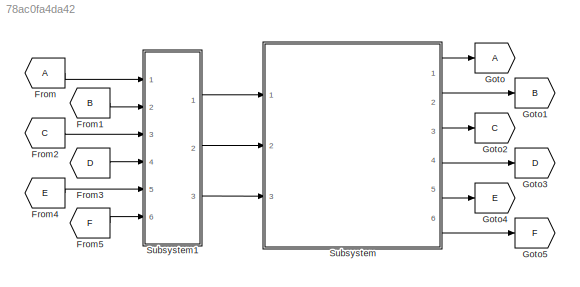
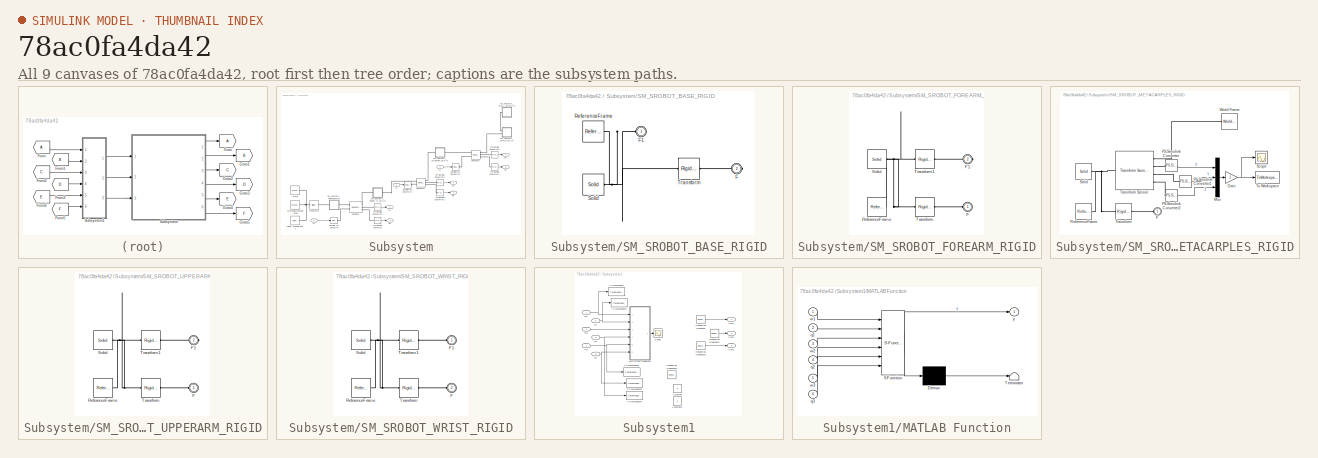
[diagram: thumbnail index - all 9 canvases of the model, root first then tree order]
MODEL slx_78ac0fa4da42
KIND model
CONFIG AbsTol = auto
CONFIG EnableMultiTasking = off
CONFIG FixedStep = 0.001
CONFIG MaxStep = auto
CONFIG MinStep = auto
CONFIG RelTol = 1e-3
CONFIG SampleTimeConstraint = Unconstrained
CONFIG Solver = FixedStepAuto
CONFIG SolverName = FixedStepAuto
CONFIG StartTime = 0.0
CONFIG StopTime = 1
WORKSPACE source: external: MATLAB File  (data not in archive)
BLOCK [From] From
BLOCK [From] From1
  GotoTag = B
BLOCK [From] From2
  GotoTag = C
BLOCK [From] From3
  GotoTag = D
BLOCK [From] From4
  GotoTag = E
BLOCK [From] From5
  GotoTag = F
BLOCK [Goto] Goto
BLOCK [Goto] Goto1
  GotoTag = B
BLOCK [Goto] Goto2
  GotoTag = C
BLOCK [Goto] Goto3
  GotoTag = D
BLOCK [Goto] Goto4
  GotoTag = E
BLOCK [Goto] Goto5
  GotoTag = F
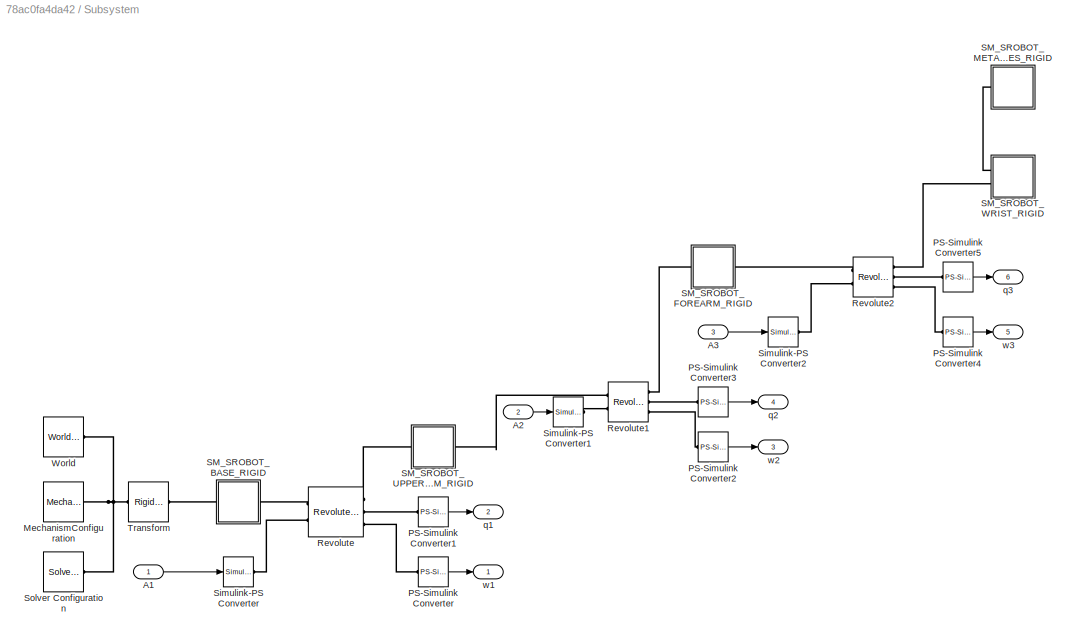
BLOCK [SubSystem] Subsystem
  Ports = [3, 6]
  RequestExecContextInheritance = off
  Variant = off
BLOCK [Inport] Subsystem/A1
  IconDisplay = Port number
BLOCK [Inport] Subsystem/A2
  IconDisplay = Port number
  Port = 2
BLOCK [Inport] Subsystem/A3
  IconDisplay = Port number
  Port = 3
BLOCK [Reference] Subsystem/MechanismConfiguration  REF=sm_lib/Utilities/Mechanism
Configuration
  Ports = [0, 0, 0, 0, 0, 0, 1]
  SourceBlock = sm_lib/Utilities/Mechanism\nConfiguration
  SourceProductBaseCode = MS
  SourceProductName = Simscape Multibody
  SourceType = Mechanism\nConfiguration
BLOCK [Reference] Subsystem/PS-Simulink Converter  REF=nesl_utility/PS-Simulink
Converter
  Ports = [0, 1, 0, 0, 0, 1]
  SourceBlock = nesl_utility/PS-Simulink\nConverter
  SourceProductBaseCode = SS
  SourceProductName = Simscape
  SourceType = PS-Simulink\nConverter
BLOCK [Reference] Subsystem/PS-Simulink Converter1  REF=nesl_utility/PS-Simulink
Converter
  Ports = [0, 1, 0, 0, 0, 1]
  SourceBlock = nesl_utility/PS-Simulink\nConverter
  SourceProductBaseCode = SS
  SourceProductName = Simscape
  SourceType = PS-Simulink\nConverter
BLOCK [Reference] Subsystem/PS-Simulink Converter2  REF=nesl_utility/PS-Simulink
Converter
  Ports = [0, 1, 0, 0, 0, 1]
  SourceBlock = nesl_utility/PS-Simulink\nConverter
  SourceProductBaseCode = SS
  SourceProductName = Simscape
  SourceType = PS-Simulink\nConverter
BLOCK [Reference] Subsystem/PS-Simulink Converter3  REF=nesl_utility/PS-Simulink
Converter
  Ports = [0, 1, 0, 0, 0, 1]
  SourceBlock = nesl_utility/PS-Simulink\nConverter
  SourceProductBaseCode = SS
  SourceProductName = Simscape
  SourceType = PS-Simulink\nConverter
BLOCK [Reference] Subsystem/PS-Simulink Converter4  REF=nesl_utility/PS-Simulink
Converter
  Ports = [0, 1, 0, 0, 0, 1]
  SourceBlock = nesl_utility/PS-Simulink\nConverter
  SourceProductBaseCode = SS
  SourceProductName = Simscape
  SourceType = PS-Simulink\nConverter
BLOCK [Reference] Subsystem/PS-Simulink Converter5  REF=nesl_utility/PS-Simulink
Converter
  Ports = [0, 1, 0, 0, 0, 1]
  SourceBlock = nesl_utility/PS-Simulink\nConverter
  SourceProductBaseCode = SS
  SourceProductName = Simscape
  SourceType = PS-Simulink\nConverter
BLOCK [Reference] Subsystem/Revolute  REF=sm_lib/Joints/Revolute Joint
  Ports = [0, 0, 0, 0, 0, 2, 3]
  SourceBlock = sm_lib/Joints/Revolute Joint
  SourceProductBaseCode = MS
  SourceProductName = Simscape Multibody
  SourceType = Revolute Joint
BLOCK [Reference] Subsystem/Revolute1  REF=sm_lib/Joints/Revolute Joint
  Ports = [0, 0, 0, 0, 0, 2, 3]
  SourceBlock = sm_lib/Joints/Revolute Joint
  SourceProductBaseCode = MS
  SourceProductName = Simscape Multibody
  SourceType = Revolute Joint
BLOCK [Reference] Subsystem/Revolute2  REF=sm_lib/Joints/Revolute Joint
  Ports = [0, 0, 0, 0, 0, 2, 3]
  SourceBlock = sm_lib/Joints/Revolute Joint
  SourceProductBaseCode = MS
  SourceProductName = Simscape Multibody
  SourceType = Revolute Joint
BLOCK [SubSystem] Subsystem/SM_SROBOT_BASE_RIGID
  Ports = [0, 0, 0, 0, 0, 1, 1]
  RequestExecContextInheritance = off
  Variant = off
BLOCK [PMIOPort] Subsystem/SM_SROBOT_BASE_RIGID/F
  Port = 2
  Side = Right
BLOCK [PMIOPort] Subsystem/SM_SROBOT_BASE_RIGID/F1
  Port = 1
  Side = Left
BLOCK [Reference] Subsystem/SM_SROBOT_BASE_RIGID/ReferenceFrame  REF=sm_lib/Frames and
Transforms/Reference
Frame
  Ports = [0, 0, 0, 0, 0, 0, 1]
  SourceBlock = sm_lib/Frames and\nTransforms/Reference\nFrame
  SourceProductBaseCode = MS
  SourceProductName = Simscape Multibody
  SourceType = Reference\nFrame
BLOCK [Reference] Subsystem/SM_SROBOT_BASE_RIGID/Solid  REF=sm_lib/Body Elements/Solid
  Ports = [0, 0, 0, 0, 0, 0, 1]
  SourceBlock = sm_lib/Body Elements/Solid
  SourceProductBaseCode = MS
  SourceProductName = Simscape Multibody
  SourceType = Solid
BLOCK [Reference] Subsystem/SM_SROBOT_BASE_RIGID/Transform  REF=sm_lib/Frames and
Transforms/Rigid
Transform
  Ports = [0, 0, 0, 0, 0, 1, 1]
  SourceBlock = sm_lib/Frames and\nTransforms/Rigid\nTransform
  SourceProductBaseCode = MS
  SourceProductName = Simscape Multibody
  SourceType = Rigid\nTransform
BLOCK [SubSystem] Subsystem/SM_SROBOT_FOREARM_RIGID
  Ports = [0, 0, 0, 0, 0, 1, 1]
  RequestExecContextInheritance = off
  Variant = off
BLOCK [PMIOPort] Subsystem/SM_SROBOT_FOREARM_RIGID/F
  Port = 1
  Side = Left
BLOCK [PMIOPort] Subsystem/SM_SROBOT_FOREARM_RIGID/F1
  Port = 2
  Side = Right
BLOCK [Reference] Subsystem/SM_SROBOT_FOREARM_RIGID/ReferenceFrame  REF=sm_lib/Frames and
Transforms/Reference
Frame
  Ports = [0, 0, 0, 0, 0, 0, 1]
  SourceBlock = sm_lib/Frames and\nTransforms/Reference\nFrame
  SourceProductBaseCode = MS
  SourceProductName = Simscape Multibody
  SourceType = Reference\nFrame
BLOCK [Reference] Subsystem/SM_SROBOT_FOREARM_RIGID/Solid  REF=sm_lib/Body Elements/Solid
  Ports = [0, 0, 0, 0, 0, 0, 1]
  SourceBlock = sm_lib/Body Elements/Solid
  SourceProductBaseCode = MS
  SourceProductName = Simscape Multibody
  SourceType = Solid
BLOCK [Reference] Subsystem/SM_SROBOT_FOREARM_RIGID/Transform  REF=sm_lib/Frames and
Transforms/Rigid
Transform
  Ports = [0, 0, 0, 0, 0, 1, 1]
  SourceBlock = sm_lib/Frames and\nTransforms/Rigid\nTransform
  SourceProductBaseCode = MS
  SourceProductName = Simscape Multibody
  SourceType = Rigid\nTransform
BLOCK [Reference] Subsystem/SM_SROBOT_FOREARM_RIGID/Transform1  REF=sm_lib/Frames and
Transforms/Rigid
Transform
  Ports = [0, 0, 0, 0, 0, 1, 1]
  SourceBlock = sm_lib/Frames and\nTransforms/Rigid\nTransform
  SourceProductBaseCode = MS
  SourceProductName = Simscape Multibody
  SourceType = Rigid\nTransform
BLOCK [SubSystem] Subsystem/SM_SROBOT_METACARPLES_RIGID
  Ports = [0, 0, 0, 0, 0, 1]
  RequestExecContextInheritance = off
  Variant = off
BLOCK [PMIOPort] Subsystem/SM_SROBOT_METACARPLES_RIGID/F
  Port = 1
  Side = Left
BLOCK [Gain] Subsystem/SM_SROBOT_METACARPLES_RIGID/Gain
  Gain = -1
  OutDataTypeStr = Inherit: Inherit via internal rule
  ParamDataTypeStr = Inherit: Inherit via internal rule
  SaturateOnIntegerOverflow = off
BLOCK [Mux] Subsystem/SM_SROBOT_METACARPLES_RIGID/Mux
  DisplayOption = bar
  Inputs = 3
  Ports = [3, 1]
BLOCK [Reference] Subsystem/SM_SROBOT_METACARPLES_RIGID/PS-Simulink Converter  REF=nesl_utility/PS-Simulink
Converter
  Ports = [0, 1, 0, 0, 0, 1]
  SourceBlock = nesl_utility/PS-Simulink\nConverter
  SourceProductBaseCode = SS
  SourceProductName = Simscape
  SourceType = PS-Simulink\nConverter
BLOCK [Reference] Subsystem/SM_SROBOT_METACARPLES_RIGID/PS-Simulink Converter1  REF=nesl_utility/PS-Simulink
Converter
  Ports = [0, 1, 0, 0, 0, 1]
  SourceBlock = nesl_utility/PS-Simulink\nConverter
  SourceProductBaseCode = SS
  SourceProductName = Simscape
  SourceType = PS-Simulink\nConverter
BLOCK [Reference] Subsystem/SM_SROBOT_METACARPLES_RIGID/PS-Simulink Converter2  REF=nesl_utility/PS-Simulink
Converter
  Ports = [0, 1, 0, 0, 0, 1]
  SourceBlock = nesl_utility/PS-Simulink\nConverter
  SourceProductBaseCode = SS
  SourceProductName = Simscape
  SourceType = PS-Simulink\nConverter
BLOCK [Reference] Subsystem/SM_SROBOT_METACARPLES_RIGID/ReferenceFrame  REF=sm_lib/Frames and
Transforms/Reference
Frame
  Ports = [0, 0, 0, 0, 0, 0, 1]
  SourceBlock = sm_lib/Frames and\nTransforms/Reference\nFrame
  SourceProductBaseCode = MS
  SourceProductName = Simscape Multibody
  SourceType = Reference\nFrame
BLOCK [Scope] Subsystem/SM_SROBOT_METACARPLES_RIGID/Scope
  NumInputPorts = 1
  Ports = [1]
  ScopeSpecificationString = Simulink.scopes.TimeScopeBlockCfg('CurrentConfiguration', extmgr.ConfigurationSet(extmgr.Configuration('Core','General UI',true),extmgr.Configuration('Core','Source UI',true),extmgr.Configuration('Sources','WiredSimulink',true,'DataLoggingVariableName','ScopeData1'),extmgr.Configuration('Visuals','Time Domain',true,'SerializedDisplays',{struct('MinYLimReal','-0.32226','MaxYLimReal','0.30956','YLab...<+1410ch>
BLOCK [Reference] Subsystem/SM_SROBOT_METACARPLES_RIGID/Solid  REF=sm_lib/Body Elements/Solid
  Ports = [0, 0, 0, 0, 0, 0, 1]
  SourceBlock = sm_lib/Body Elements/Solid
  SourceProductBaseCode = MS
  SourceProductName = Simscape Multibody
  SourceType = Solid
BLOCK [ToWorkspace] Subsystem/SM_SROBOT_METACARPLES_RIGID/To Workspace
  FixptAsFi = on
  MaxDataPoints = inf
  Ports = [1]
  SampleTime = -1
  Save2DSignal = 3-D array (concatenate along third dimension)
  VariableName = position
BLOCK [Reference] Subsystem/SM_SROBOT_METACARPLES_RIGID/Transform  REF=sm_lib/Frames and
Transforms/Rigid
Transform
  Ports = [0, 0, 0, 0, 0, 1, 1]
  SourceBlock = sm_lib/Frames and\nTransforms/Rigid\nTransform
  SourceProductBaseCode = MS
  SourceProductName = Simscape Multibody
  SourceType = Rigid\nTransform
BLOCK [Reference] Subsystem/SM_SROBOT_METACARPLES_RIGID/Transform Sensor  REF=sm_lib/Frames and
Transforms/Transform
Sensor
  Ports = [0, 0, 0, 0, 0, 1, 4]
  SourceBlock = sm_lib/Frames and\nTransforms/Transform\nSensor
  SourceProductBaseCode = MS
  SourceProductName = Simscape Multibody
  SourceType = Transform\nSensor
BLOCK [Reference] Subsystem/SM_SROBOT_METACARPLES_RIGID/World Frame  REF=sm_lib/Frames and
Transforms/World Frame
  Ports = [0, 0, 0, 0, 0, 0, 1]
  SourceBlock = sm_lib/Frames and\nTransforms/World Frame
  SourceProductBaseCode = MS
  SourceProductName = Simscape Multibody
  SourceType = World Frame
BLOCK [SubSystem] Subsystem/SM_SROBOT_UPPERARM_RIGID
  Ports = [0, 0, 0, 0, 0, 1, 1]
  RequestExecContextInheritance = off
  Variant = off
BLOCK [PMIOPort] Subsystem/SM_SROBOT_UPPERARM_RIGID/F
  Port = 1
  Side = Left
BLOCK [PMIOPort] Subsystem/SM_SROBOT_UPPERARM_RIGID/F1
  Port = 2
  Side = Right
BLOCK [Reference] Subsystem/SM_SROBOT_UPPERARM_RIGID/ReferenceFrame  REF=sm_lib/Frames and
Transforms/Reference
Frame
  Ports = [0, 0, 0, 0, 0, 0, 1]
  SourceBlock = sm_lib/Frames and\nTransforms/Reference\nFrame
  SourceProductBaseCode = MS
  SourceProductName = Simscape Multibody
  SourceType = Reference\nFrame
BLOCK [Reference] Subsystem/SM_SROBOT_UPPERARM_RIGID/Solid  REF=sm_lib/Body Elements/Solid
  Ports = [0, 0, 0, 0, 0, 0, 1]
  SourceBlock = sm_lib/Body Elements/Solid
  SourceProductBaseCode = MS
  SourceProductName = Simscape Multibody
  SourceType = Solid
BLOCK [Reference] Subsystem/SM_SROBOT_UPPERARM_RIGID/Transform  REF=sm_lib/Frames and
Transforms/Rigid
Transform
  Ports = [0, 0, 0, 0, 0, 1, 1]
  SourceBlock = sm_lib/Frames and\nTransforms/Rigid\nTransform
  SourceProductBaseCode = MS
  SourceProductName = Simscape Multibody
  SourceType = Rigid\nTransform
BLOCK [Reference] Subsystem/SM_SROBOT_UPPERARM_RIGID/Transform1  REF=sm_lib/Frames and
Transforms/Rigid
Transform
  Ports = [0, 0, 0, 0, 0, 1, 1]
  SourceBlock = sm_lib/Frames and\nTransforms/Rigid\nTransform
  SourceProductBaseCode = MS
  SourceProductName = Simscape Multibody
  SourceType = Rigid\nTransform
BLOCK [SubSystem] Subsystem/SM_SROBOT_WRIST_RIGID
  Ports = [0, 0, 0, 0, 0, 2]
  RequestExecContextInheritance = off
  Variant = off
BLOCK [PMIOPort] Subsystem/SM_SROBOT_WRIST_RIGID/F
  Port = 2
  Side = Left
BLOCK [PMIOPort] Subsystem/SM_SROBOT_WRIST_RIGID/F1
  Port = 1
  Side = Left
BLOCK [Reference] Subsystem/SM_SROBOT_WRIST_RIGID/ReferenceFrame  REF=sm_lib/Frames and
Transforms/Reference
Frame
  Ports = [0, 0, 0, 0, 0, 0, 1]
  SourceBlock = sm_lib/Frames and\nTransforms/Reference\nFrame
  SourceProductBaseCode = MS
  SourceProductName = Simscape Multibody
  SourceType = Reference\nFrame
BLOCK [Reference] Subsystem/SM_SROBOT_WRIST_RIGID/Solid  REF=sm_lib/Body Elements/Solid
  Ports = [0, 0, 0, 0, 0, 0, 1]
  SourceBlock = sm_lib/Body Elements/Solid
  SourceProductBaseCode = MS
  SourceProductName = Simscape Multibody
  SourceType = Solid
BLOCK [Reference] Subsystem/SM_SROBOT_WRIST_RIGID/Transform  REF=sm_lib/Frames and
Transforms/Rigid
Transform
  Ports = [0, 0, 0, 0, 0, 1, 1]
  SourceBlock = sm_lib/Frames and\nTransforms/Rigid\nTransform
  SourceProductBaseCode = MS
  SourceProductName = Simscape Multibody
  SourceType = Rigid\nTransform
BLOCK [Reference] Subsystem/SM_SROBOT_WRIST_RIGID/Transform1  REF=sm_lib/Frames and
Transforms/Rigid
Transform
  Ports = [0, 0, 0, 0, 0, 1, 1]
  SourceBlock = sm_lib/Frames and\nTransforms/Rigid\nTransform
  SourceProductBaseCode = MS
  SourceProductName = Simscape Multibody
  SourceType = Rigid\nTransform
BLOCK [Reference] Subsystem/Simulink-PS Converter  REF=nesl_utility/Simulink-PS
Converter
  Ports = [1, 0, 0, 0, 0, 0, 1]
  SourceBlock = nesl_utility/Simulink-PS\nConverter
  SourceProductBaseCode = SS
  SourceProductName = Simscape
  SourceType = Simulink-PS\nConverter
BLOCK [Reference] Subsystem/Simulink-PS Converter1  REF=nesl_utility/Simulink-PS
Converter
  Ports = [1, 0, 0, 0, 0, 0, 1]
  SourceBlock = nesl_utility/Simulink-PS\nConverter
  SourceProductBaseCode = SS
  SourceProductName = Simscape
  SourceType = Simulink-PS\nConverter
BLOCK [Reference] Subsystem/Simulink-PS Converter2  REF=nesl_utility/Simulink-PS
Converter
  Ports = [1, 0, 0, 0, 0, 0, 1]
  SourceBlock = nesl_utility/Simulink-PS\nConverter
  SourceProductBaseCode = SS
  SourceProductName = Simscape
  SourceType = Simulink-PS\nConverter
BLOCK [Reference] Subsystem/Solver Configuration  REF=nesl_utility/Solver
Configuration
  Ports = [0, 0, 0, 0, 0, 0, 1]
  SourceBlock = nesl_utility/Solver\nConfiguration
  SourceProductBaseCode = SS
  SourceProductName = Simscape
  SourceType = Solver\nConfiguration
BLOCK [Reference] Subsystem/Transform  REF=sm_lib/Frames and
Transforms/Rigid
Transform
  Ports = [0, 0, 0, 0, 0, 1, 1]
  SourceBlock = sm_lib/Frames and\nTransforms/Rigid\nTransform
  SourceProductBaseCode = MS
  SourceProductName = Simscape Multibody
  SourceType = Rigid\nTransform
BLOCK [Reference] Subsystem/World  REF=sm_lib/Frames and
Transforms/World Frame
  Ports = [0, 0, 0, 0, 0, 0, 1]
  SourceBlock = sm_lib/Frames and\nTransforms/World Frame
  SourceProductBaseCode = MS
  SourceProductName = Simscape Multibody
  SourceType = World Frame
BLOCK [Outport] Subsystem/q1
  IconDisplay = Port number
  Port = 2
BLOCK [Outport] Subsystem/q2
  IconDisplay = Port number
  Port = 4
BLOCK [Outport] Subsystem/q3
  IconDisplay = Port number
  Port = 6
BLOCK [Outport] Subsystem/w1
  IconDisplay = Port number
BLOCK [Outport] Subsystem/w2
  IconDisplay = Port number
  Port = 3
BLOCK [Outport] Subsystem/w3
  IconDisplay = Port number
  Port = 5
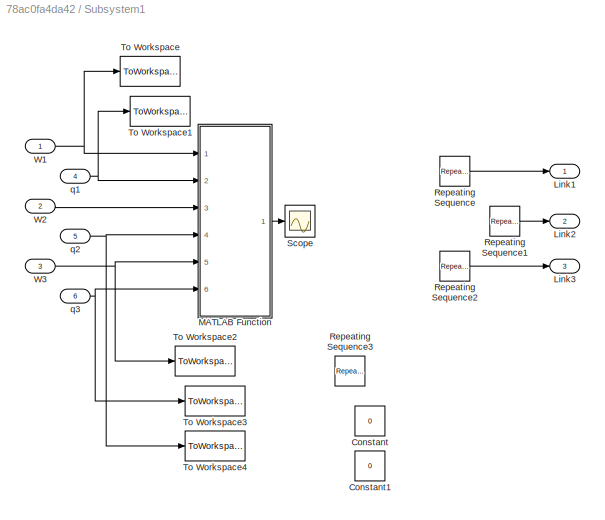
BLOCK [SubSystem] Subsystem1
  Ports = [6, 3]
  RequestExecContextInheritance = off
  Variant = off
BLOCK [Constant] Subsystem1/Constant
  Value = 0
BLOCK [Constant] Subsystem1/Constant1
  Value = 0
BLOCK [Outport] Subsystem1/Link1
  IconDisplay = Port number
BLOCK [Outport] Subsystem1/Link2
  IconDisplay = Port number
  Port = 2
BLOCK [Outport] Subsystem1/Link3
  IconDisplay = Port number
  Port = 3
BLOCK [SubSystem] Subsystem1/MATLAB Function
  ErrorFcn = Stateflow.Translate.translate
  PermitHierarchicalResolution = ExplicitOnly
  Ports = [6, 1]
  RequestExecContextInheritance = off
  SFBlockType = MATLAB Function
  TreatAsAtomicUnit = on
  Variant = off
BLOCK [Demux] Subsystem1/MATLAB Function/ Demux 
  Outputs = 1
  Ports = [1, 1]
BLOCK [S-Function] Subsystem1/MATLAB Function/ SFunction 
  EnableBusSupport = on
  FunctionName = sf_sfun
  PortCounts = [6 2]
  Ports = [6, 2]
  SFcnIsStateOwnerBlock = off
  SFunctionDeploymentMode = off
  Tag = Stateflow S-Function ARM_2_LINK 2
BLOCK [Terminator] Subsystem1/MATLAB Function/ Terminator 
BLOCK [Inport] Subsystem1/MATLAB Function/q1
  IconDisplay = Port number
  Port = 2
BLOCK [Inport] Subsystem1/MATLAB Function/q2
  IconDisplay = Port number
  Port = 4
BLOCK [Inport] Subsystem1/MATLAB Function/q3
  IconDisplay = Port number
  Port = 6
BLOCK [Inport] Subsystem1/MATLAB Function/w1
  IconDisplay = Port number
BLOCK [Inport] Subsystem1/MATLAB Function/w2
  IconDisplay = Port number
  Port = 3
BLOCK [Inport] Subsystem1/MATLAB Function/w3
  IconDisplay = Port number
  Port = 5
BLOCK [Outport] Subsystem1/MATLAB Function/y
  IconDisplay = Port number
BLOCK [Reference] Subsystem1/Repeating Sequence  REF=simulink/Sources/Repeating
Sequence
  Ports = [0, 1]
  SourceBlock = simulink/Sources/Repeating\nSequence
  SourceProductBaseCode = SL
  SourceProductName = Simulink
  SourceType = Repeating table
BLOCK [Reference] Subsystem1/Repeating Sequence1  REF=simulink/Sources/Repeating
Sequence
  Ports = [0, 1]
  SourceBlock = simulink/Sources/Repeating\nSequence
  SourceProductBaseCode = SL
  SourceProductName = Simulink
  SourceType = Repeating table
BLOCK [Reference] Subsystem1/Repeating Sequence2  REF=simulink/Sources/Repeating
Sequence
  Ports = [0, 1]
  SourceBlock = simulink/Sources/Repeating\nSequence
  SourceProductBaseCode = SL
  SourceProductName = Simulink
  SourceType = Repeating table
BLOCK [Reference] Subsystem1/Repeating Sequence3  REF=simulink/Sources/Repeating
Sequence
  Ports = [0, 1]
  SourceBlock = simulink/Sources/Repeating\nSequence
  SourceProductBaseCode = SL
  SourceProductName = Simulink
  SourceType = Repeating table
BLOCK [Scope] Subsystem1/Scope
  NumInputPorts = 1
  Ports = [1]
  ScopeSpecificationString = Simulink.scopes.TimeScopeBlockCfg('CurrentConfiguration', extmgr.ConfigurationSet(extmgr.Configuration('Core','General UI',true),extmgr.Configuration('Core','Source UI',true),extmgr.Configuration('Sources','WiredSimulink',true),extmgr.Configuration('Visuals','Time Domain',true,'SerializedDisplays',{struct('MinYLimReal','9.00000','MaxYLimReal','11.00000','YLabelReal','','MinYLimMag','9.00000','MaxY...<+1362ch>
BLOCK [ToWorkspace] Subsystem1/To Workspace
  FixptAsFi = on
  MaxDataPoints = inf
  Ports = [1]
  SampleTime = -1
  Save2DSignal = 2-D array (concatenate along first dimension)
  VariableName = w1
BLOCK [ToWorkspace] Subsystem1/To Workspace1
  FixptAsFi = on
  MaxDataPoints = inf
  Ports = [1]
  SampleTime = -1
  Save2DSignal = 2-D array (concatenate along first dimension)
  VariableName = q1
BLOCK [ToWorkspace] Subsystem1/To Workspace2
  FixptAsFi = on
  MaxDataPoints = inf
  Ports = [1]
  SampleTime = -1
  Save2DSignal = 2-D array (concatenate along first dimension)
  VariableName = w3
BLOCK [ToWorkspace] Subsystem1/To Workspace3
  FixptAsFi = on
  MaxDataPoints = inf
  Ports = [1]
  SampleTime = -1
  Save2DSignal = 2-D array (concatenate along first dimension)
  VariableName = q3
BLOCK [ToWorkspace] Subsystem1/To Workspace4
  FixptAsFi = on
  MaxDataPoints = inf
  Ports = [1]
  SampleTime = -1
  Save2DSignal = 2-D array (concatenate along first dimension)
  VariableName = q2
BLOCK [Inport] Subsystem1/W1
  IconDisplay = Port number
BLOCK [Inport] Subsystem1/W2
  IconDisplay = Port number
  Port = 2
BLOCK [Inport] Subsystem1/W3
  IconDisplay = Port number
  Port = 3
BLOCK [Inport] Subsystem1/q1
  IconDisplay = Port number
  Port = 4
BLOCK [Inport] Subsystem1/q2
  IconDisplay = Port number
  Port = 5
BLOCK [Inport] Subsystem1/q3
  IconDisplay = Port number
  Port = 6
LINE From1:1 -> Subsystem1:2
LINE From2:1 -> Subsystem1:3
LINE From3:1 -> Subsystem1:4
LINE From4:1 -> Subsystem1:5
LINE From5:1 -> Subsystem1:6
LINE From:1 -> Subsystem1:1
LINE Subsystem/A1:1 -> Subsystem/Simulink-PS Converter:1
LINE Subsystem/A2:1 -> Subsystem/Simulink-PS Converter1:1
LINE Subsystem/A3:1 -> Subsystem/Simulink-PS Converter2:1
LINE Subsystem/PS-Simulink Converter1:1 -> Subsystem/q1:1
LINE Subsystem/PS-Simulink Converter2:1 -> Subsystem/w2:1
LINE Subsystem/PS-Simulink Converter3:1 -> Subsystem/q2:1
LINE Subsystem/PS-Simulink Converter4:1 -> Subsystem/w3:1
LINE Subsystem/PS-Simulink Converter5:1 -> Subsystem/q3:1
LINE Subsystem/PS-Simulink Converter:1 -> Subsystem/w1:1
NET Subsystem/SM_SROBOT_METACARPLES_RIGID/Gain:1 -> Subsystem/SM_SROBOT_METACARPLES_RIGID/Scope:1, Subsystem/SM_SROBOT_METACARPLES_RIGID/To Workspace:1
LINE Subsystem/SM_SROBOT_METACARPLES_RIGID/Mux:1 -> Subsystem/SM_SROBOT_METACARPLES_RIGID/Gain:1
LINE Subsystem/SM_SROBOT_METACARPLES_RIGID/PS-Simulink Converter1:1 -> Subsystem/SM_SROBOT_METACARPLES_RIGID/Mux:2
LINE Subsystem/SM_SROBOT_METACARPLES_RIGID/PS-Simulink Converter2:1 -> Subsystem/SM_SROBOT_METACARPLES_RIGID/Mux:3
LINE Subsystem/SM_SROBOT_METACARPLES_RIGID/PS-Simulink Converter:1 -> Subsystem/SM_SROBOT_METACARPLES_RIGID/Mux:1
LINE Subsystem1/MATLAB Function:1 -> Subsystem1/Scope:1
LINE Subsystem1/Repeating Sequence1:1 -> Subsystem1/Link2:1
LINE Subsystem1/Repeating Sequence2:1 -> Subsystem1/Link3:1
LINE Subsystem1/Repeating Sequence:1 -> Subsystem1/Link1:1
NET Subsystem1/W1:1 -> Subsystem1/MATLAB Function:1, Subsystem1/To Workspace:1
LINE Subsystem1/W2:1 -> Subsystem1/MATLAB Function:3
NET Subsystem1/W3:1 -> Subsystem1/MATLAB Function:5, Subsystem1/To Workspace2:1
NET Subsystem1/q1:1 -> Subsystem1/MATLAB Function:2, Subsystem1/To Workspace1:1
NET Subsystem1/q2:1 -> Subsystem1/MATLAB Function:4, Subsystem1/To Workspace4:1
NET Subsystem1/q3:1 -> Subsystem1/MATLAB Function:6, Subsystem1/To Workspace3:1
LINE Subsystem1:1 -> Subsystem:1
LINE Subsystem1:2 -> Subsystem:2
LINE Subsystem1:3 -> Subsystem:3
LINE Subsystem:1 -> Goto:1
LINE Subsystem:2 -> Goto1:1
LINE Subsystem:3 -> Goto2:1
LINE Subsystem:4 -> Goto3:1
LINE Subsystem:5 -> Goto4:1
LINE Subsystem:6 -> Goto5:1
PNET net1: Subsystem/MechanismConfiguration:RConn1 -- Subsystem/Solver Configuration:RConn1 -- Subsystem/Transform:LConn1 -- Subsystem/World:RConn1
PLINE Subsystem/PS-Simulink Converter1:LConn1 -- Subsystem/Revolute:RConn2
PLINE Subsystem/PS-Simulink Converter2:LConn1 -- Subsystem/Revolute1:RConn3
PLINE Subsystem/PS-Simulink Converter3:LConn1 -- Subsystem/Revolute1:RConn2
PLINE Subsystem/PS-Simulink Converter4:LConn1 -- Subsystem/Revolute2:RConn3
PLINE Subsystem/PS-Simulink Converter5:LConn1 -- Subsystem/Revolute2:RConn2
PLINE Subsystem/PS-Simulink Converter:LConn1 -- Subsystem/Revolute:RConn3
PLINE Subsystem/Revolute1:LConn1 -- Subsystem/SM_SROBOT_UPPERARM_RIGID:RConn1
PLINE Subsystem/Revolute1:LConn2 -- Subsystem/Simulink-PS Converter1:RConn1
PLINE Subsystem/Revolute1:RConn1 -- Subsystem/SM_SROBOT_FOREARM_RIGID:LConn1
PLINE Subsystem/Revolute2:LConn1 -- Subsystem/SM_SROBOT_FOREARM_RIGID:RConn1
PLINE Subsystem/Revolute2:LConn2 -- Subsystem/Simulink-PS Converter2:RConn1
PLINE Subsystem/Revolute2:RConn1 -- Subsystem/SM_SROBOT_WRIST_RIGID:LConn2
PLINE Subsystem/Revolute:LConn1 -- Subsystem/SM_SROBOT_BASE_RIGID:RConn1
PLINE Subsystem/Revolute:LConn2 -- Subsystem/Simulink-PS Converter:RConn1
PLINE Subsystem/Revolute:RConn1 -- Subsystem/SM_SROBOT_UPPERARM_RIGID:LConn1
PNET net2: Subsystem/SM_SROBOT_BASE_RIGID/F1:RConn1 -- Subsystem/SM_SROBOT_BASE_RIGID/ReferenceFrame:RConn1 -- Subsystem/SM_SROBOT_BASE_RIGID/Solid:RConn1 -- Subsystem/SM_SROBOT_BASE_RIGID/Transform:LConn1
PLINE Subsystem/SM_SROBOT_BASE_RIGID/F:RConn1 -- Subsystem/SM_SROBOT_BASE_RIGID/Transform:RConn1
PLINE Subsystem/SM_SROBOT_BASE_RIGID:LConn1 -- Subsystem/Transform:RConn1
PLINE Subsystem/SM_SROBOT_FOREARM_RIGID/F1:RConn1 -- Subsystem/SM_SROBOT_FOREARM_RIGID/Transform1:RConn1
PLINE Subsystem/SM_SROBOT_FOREARM_RIGID/F:RConn1 -- Subsystem/SM_SROBOT_FOREARM_RIGID/Transform:RConn1
PNET net3: Subsystem/SM_SROBOT_FOREARM_RIGID/ReferenceFrame:RConn1 -- Subsystem/SM_SROBOT_FOREARM_RIGID/Solid:RConn1 -- Subsystem/SM_SROBOT_FOREARM_RIGID/Transform1:LConn1 -- Subsystem/SM_SROBOT_FOREARM_RIGID/Transform:LConn1
PLINE Subsystem/SM_SROBOT_METACARPLES_RIGID/F:RConn1 -- Subsystem/SM_SROBOT_METACARPLES_RIGID/Transform:RConn1
PLINE Subsystem/SM_SROBOT_METACARPLES_RIGID/PS-Simulink Converter1:LConn1 -- Subsystem/SM_SROBOT_METACARPLES_RIGID/Transform Sensor:RConn3
PLINE Subsystem/SM_SROBOT_METACARPLES_RIGID/PS-Simulink Converter2:LConn1 -- Subsystem/SM_SROBOT_METACARPLES_RIGID/Transform Sensor:RConn4
PLINE Subsystem/SM_SROBOT_METACARPLES_RIGID/PS-Simulink Converter:LConn1 -- Subsystem/SM_SROBOT_METACARPLES_RIGID/Transform Sensor:RConn2
PNET net4: Subsystem/SM_SROBOT_METACARPLES_RIGID/ReferenceFrame:RConn1 -- Subsystem/SM_SROBOT_METACARPLES_RIGID/Solid:RConn1 -- Subsystem/SM_SROBOT_METACARPLES_RIGID/Transform Sensor:LConn1 -- Subsystem/SM_SROBOT_METACARPLES_RIGID/Transform:LConn1
PLINE Subsystem/SM_SROBOT_METACARPLES_RIGID/Transform Sensor:RConn1 -- Subsystem/SM_SROBOT_METACARPLES_RIGID/World Frame:RConn1
PLINE Subsystem/SM_SROBOT_METACARPLES_RIGID:LConn1 -- Subsystem/SM_SROBOT_WRIST_RIGID:LConn1
PLINE Subsystem/SM_SROBOT_UPPERARM_RIGID/F1:RConn1 -- Subsystem/SM_SROBOT_UPPERARM_RIGID/Transform1:RConn1
PLINE Subsystem/SM_SROBOT_UPPERARM_RIGID/F:RConn1 -- Subsystem/SM_SROBOT_UPPERARM_RIGID/Transform:RConn1
PNET net5: Subsystem/SM_SROBOT_UPPERARM_RIGID/ReferenceFrame:RConn1 -- Subsystem/SM_SROBOT_UPPERARM_RIGID/Solid:RConn1 -- Subsystem/SM_SROBOT_UPPERARM_RIGID/Transform1:LConn1 -- Subsystem/SM_SROBOT_UPPERARM_RIGID/Transform:LConn1
PLINE Subsystem/SM_SROBOT_WRIST_RIGID/F1:RConn1 -- Subsystem/SM_SROBOT_WRIST_RIGID/Transform1:RConn1
PLINE Subsystem/SM_SROBOT_WRIST_RIGID/F:RConn1 -- Subsystem/SM_SROBOT_WRIST_RIGID/Transform:RConn1
PNET net6: Subsystem/SM_SROBOT_WRIST_RIGID/ReferenceFrame:RConn1 -- Subsystem/SM_SROBOT_WRIST_RIGID/Solid:RConn1 -- Subsystem/SM_SROBOT_WRIST_RIGID/Transform1:LConn1 -- Subsystem/SM_SROBOT_WRIST_RIGID/Transform:LConn1
note: NET lines group one-source signal fan-out (src -> all destinations, sorted); 1:1 wires keep LINE; PNET lines group multi-terminal physical nets as a canonical sorted terminal list (undirected conserving connections); 2-terminal nets keep the pairwise PLINE form
CHART Subsystem1/MATLAB Function states=1 transitions=1
  STATE_LABEL 'eML_blk_kernel()'
  STATE_LABEL 'SCRIPT:\nfunction y = fcn(w1,q1,w2,q2,w3,q3)\n%% Check direction\nmax_v = 10;\nu1 = max_v*test(pi/4-q1);\nu2 = max_v*test(pi/4-q2);\nu3 = max_v*test(pi/4-q3);\ny = u1;\n\nfunction y = test(x)\nif x>0\n    y = 1;\nelse\n    y =0;\nend'
